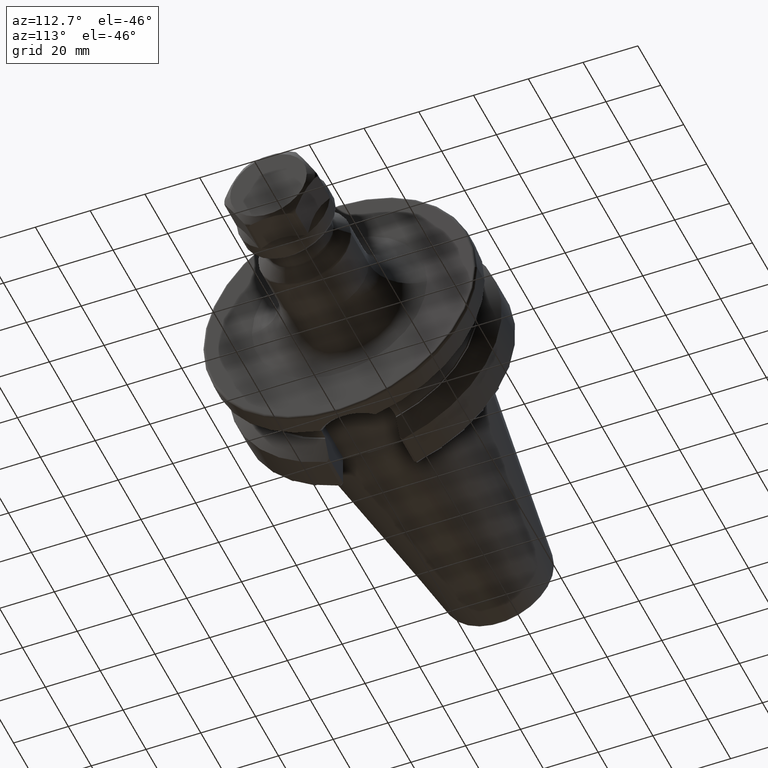
[diagram: clean part render]
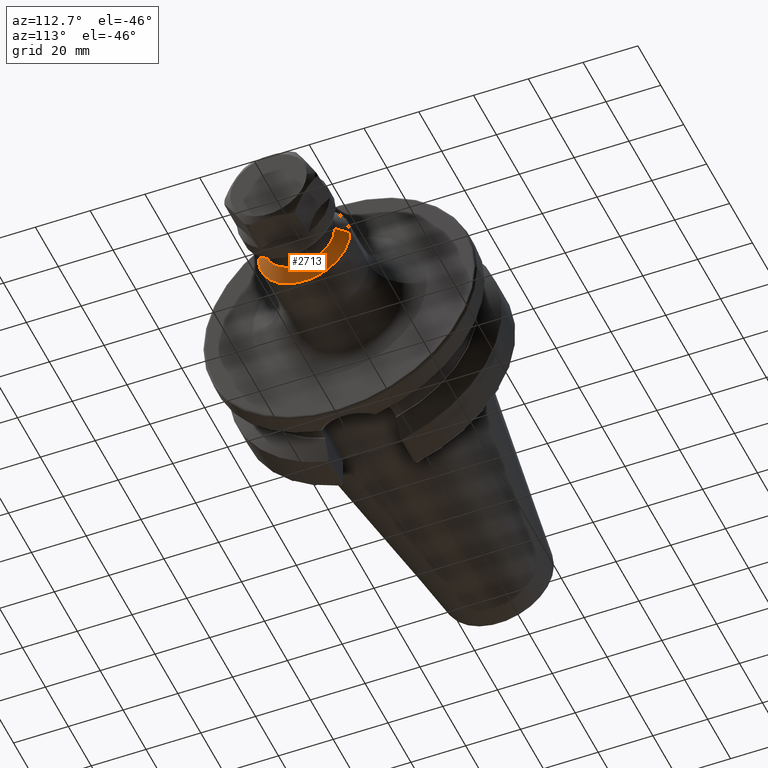
[diagram: same view with one face highlighted and labeled with its STEP entity id]
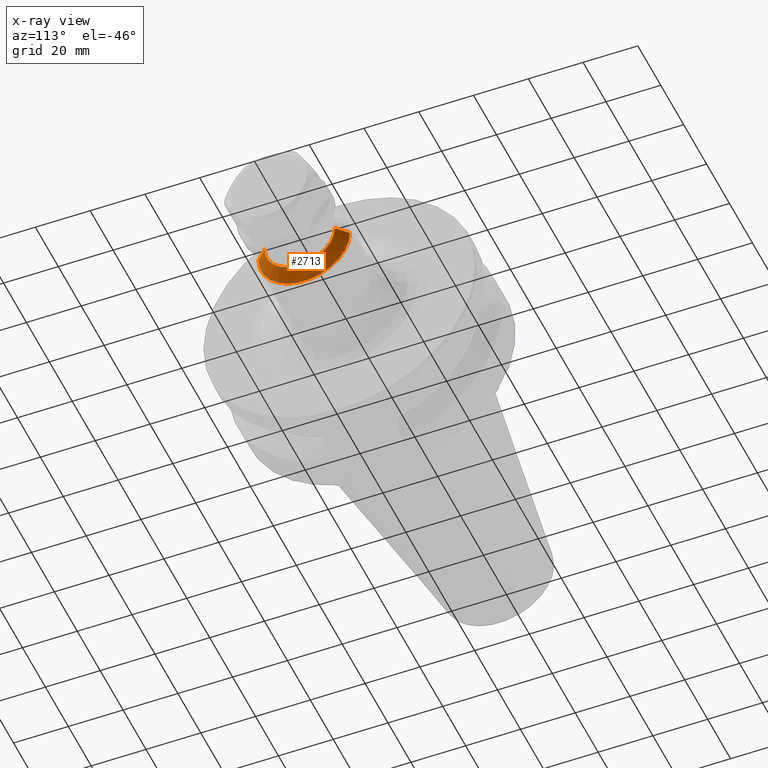
[diagram: x-ray of the same camera — body ghosted, the highlighted face saturated]
A machine part, auxiliary view. The second image highlights one B-rep face of the part: STEP entity #2713.
The next image is the same camera in x-ray: the body ghosted, the highlighted face saturated — about 0% of this face is hidden behind the body in this view.
In plain terms, the highlighted conical surface has half-angle 45 deg.
Its self-contained STEP definition (entity closure, byte-faithful):
#892=CARTESIAN_POINT('',(6.879289321881E1,0.E0,0.E0));
#893=DIRECTION('',(-1.E0,0.E0,0.E0));
#894=DIRECTION('',(0.E0,1.E0,0.E0));
#895=AXIS2_PLACEMENT_3D('',#892,#893,#894);
#897=DIRECTION('',(-7.071067811865E-1,-7.071067811865E-1,1.329903136168E-13));
#898=VECTOR('',#897,5.535533905932E0);
#899=CARTESIAN_POINT('',(7.270710678119E1,-1.279289321881E1,
6.097668444835E-13));
#900=LINE('',#899,#898);
#901=CARTESIAN_POINT('',(7.270710678119E1,0.E0,0.E0));
#902=DIRECTION('',(1.E0,0.E0,0.E0));
#903=DIRECTION('',(0.E0,-1.E0,0.E0));
#904=AXIS2_PLACEMENT_3D('',#901,#902,#903);
#906=DIRECTION('',(-7.071067811865E-1,7.071067811865E-1,-1.334288401437E-13));
#907=VECTOR('',#906,5.535533905932E0);
#908=CARTESIAN_POINT('',(7.270710678119E1,1.279289321881E1,
-6.101585138768E-13));
#909=LINE('',#908,#907);
#1471=CARTESIAN_POINT('',(7.270710678119E1,-1.279289321881E1,0.E0));
#1472=CARTESIAN_POINT('',(7.270710678119E1,1.279289321881E1,0.E0));
#1473=VERTEX_POINT('',#1471);
#1474=VERTEX_POINT('',#1472);
#1483=CARTESIAN_POINT('',(6.879289321881E1,1.670710678119E1,0.E0));
#1484=CARTESIAN_POINT('',(6.879289321881E1,-1.670710678119E1,0.E0));
#1485=VERTEX_POINT('',#1483);
#1486=VERTEX_POINT('',#1484);
#2699=CARTESIAN_POINT('',(7.075E1,0.E0,0.E0));
#2700=DIRECTION('',(-1.E0,0.E0,0.E0));
#2701=DIRECTION('',(0.E0,1.E0,0.E0));
#2702=AXIS2_PLACEMENT_3D('',#2699,#2700,#2701);
#2703=CONICAL_SURFACE('',#2702,1.475E1,4.5E1);
#2704=ORIENTED_EDGE('',*,*,#2681,.T.);
#2706=ORIENTED_EDGE('',*,*,#2705,.F.);
#2708=ORIENTED_EDGE('',*,*,#2707,.T.);
#2710=ORIENTED_EDGE('',*,*,#2709,.T.);
#2711=EDGE_LOOP('',(#2704,#2706,#2708,#2710));
#2712=FACE_OUTER_BOUND('',#2711,.F.);
#2713=ADVANCED_FACE('',(#2712),#2703,.T.);
#896=CIRCLE('',#895,1.670710678119E1);
#905=CIRCLE('',#904,1.279289321881E1);
#2681=EDGE_CURVE('',#1485,#1486,#896,.T.);
#2705=EDGE_CURVE('',#1473,#1486,#900,.T.);
#2707=EDGE_CURVE('',#1473,#1474,#905,.T.);
#2709=EDGE_CURVE('',#1474,#1485,#909,.T.);